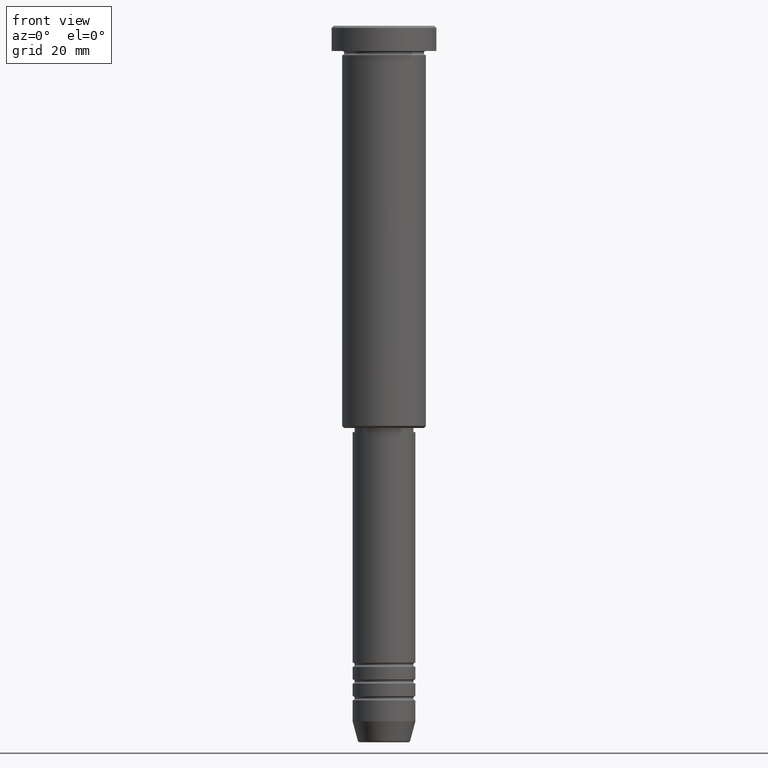
[diagram: clean part render]
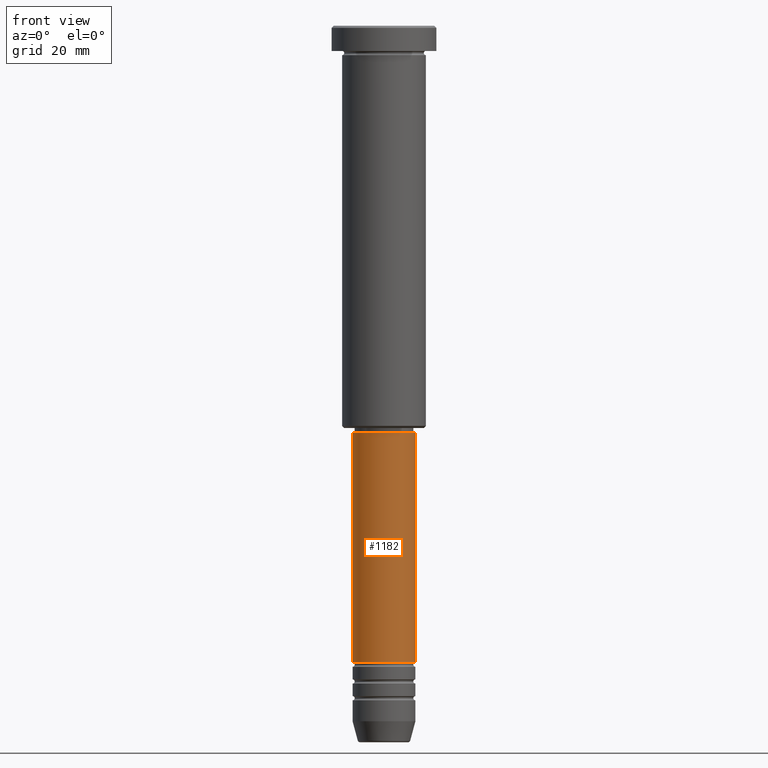
[diagram: same view with one face highlighted and labeled with its STEP entity id]
A machine part, front view. The second image highlights one B-rep face of the part: STEP entity #1182.
In plain terms, the highlighted cylindrical surface (edge-blend (fillet) strip) has radius 7.5 mm, axis along (-0, -0, 1).
Its self-contained STEP definition (entity closure, byte-faithful):
#51 = VERTEX_POINT ( 'NONE', #101 ) ;
#101 = CARTESIAN_POINT ( 'NONE',  ( -7.500000000000000000, 9.184850993605147944E-16, -96.99999999999997158 ) ) ;
#103 = CARTESIAN_POINT ( 'NONE',  ( -7.500000000000001776, 9.184850993605149917E-16, -151.9999999999998579 ) ) ;
#130 = CIRCLE ( 'NONE', #783, 7.500000000000000888 ) ;
#184 = AXIS2_PLACEMENT_3D ( 'NONE', #565, #1007, #1002 ) ;
#298 = DIRECTION ( 'NONE',  ( 1.000000000000000000, 0.000000000000000000, 0.000000000000000000 ) ) ;
#305 = EDGE_CURVE ( 'NONE', #938, #51, #918, .T. ) ;
#425 = ORIENTED_EDGE ( 'NONE', *, *, #776, .T. ) ;
#439 = VERTEX_POINT ( 'NONE', #844 ) ;
#454 = DIRECTION ( 'NONE',  ( -0.000000000000000000, -0.000000000000000000, 1.000000000000000000 ) ) ;
#465 = DIRECTION ( 'NONE',  ( -0.000000000000000000, -0.000000000000000000, 1.000000000000000000 ) ) ;
#479 = VECTOR ( 'NONE', #465, 1000.000000000000000 ) ;
#484 = EDGE_CURVE ( 'NONE', #549, #439, #959, .T. ) ;
#521 = EDGE_CURVE ( 'NONE', #51, #439, #625, .T. ) ;
#532 = AXIS2_PLACEMENT_3D ( 'NONE', #756, #1115, #298 ) ;
#542 = CARTESIAN_POINT ( 'NONE',  ( -7.500000000000000000, 9.184850993605147944E-16, 0.000000000000000000 ) ) ;
#549 = VERTEX_POINT ( 'NONE', #707 ) ;
#565 = CARTESIAN_POINT ( 'NONE',  ( 0.000000000000000000, 0.000000000000000000, 0.000000000000000000 ) ) ;
#571 = VECTOR ( 'NONE', #857, 1000.000000000000000 ) ;
#622 = ORIENTED_EDGE ( 'NONE', *, *, #521, .F. ) ;
#625 = CIRCLE ( 'NONE', #532, 7.500000000000000000 ) ;
#627 = CARTESIAN_POINT ( 'NONE',  ( 0.000000000000000000, 0.000000000000000000, -151.9999999999998579 ) ) ;
#641 = FACE_OUTER_BOUND ( 'NONE', #804, .T. ) ;
#679 = ORIENTED_EDGE ( 'NONE', *, *, #484, .T. ) ;
#707 = CARTESIAN_POINT ( 'NONE',  ( 7.500000000000000888, 0.000000000000000000, -151.9999999999998579 ) ) ;
#756 = CARTESIAN_POINT ( 'NONE',  ( 0.000000000000000000, 0.000000000000000000, -96.99999999999997158 ) ) ;
#774 = ORIENTED_EDGE ( 'NONE', *, *, #305, .F. ) ;
#775 = CARTESIAN_POINT ( 'NONE',  ( 7.500000000000000000, 0.000000000000000000, 0.000000000000000000 ) ) ;
#776 = EDGE_CURVE ( 'NONE', #938, #549, #130, .T. ) ;
#783 = AXIS2_PLACEMENT_3D ( 'NONE', #627, #454, #1170 ) ;
#804 = EDGE_LOOP ( 'NONE', ( #774, #425, #679, #622 ) ) ;
#844 = CARTESIAN_POINT ( 'NONE',  ( 7.500000000000000000, 0.000000000000000000, -96.99999999999997158 ) ) ;
#857 = DIRECTION ( 'NONE',  ( -0.000000000000000000, -0.000000000000000000, 1.000000000000000000 ) ) ;
#918 = LINE ( 'NONE', #542, #479 ) ;
#938 = VERTEX_POINT ( 'NONE', #103 ) ;
#942 = CYLINDRICAL_SURFACE ( 'NONE', #184, 7.500000000000000000 ) ;
#959 = LINE ( 'NONE', #775, #571 ) ;
#1002 = DIRECTION ( 'NONE',  ( 1.000000000000000000, 0.000000000000000000, 0.000000000000000000 ) ) ;
#1007 = DIRECTION ( 'NONE',  ( -0.000000000000000000, -0.000000000000000000, 1.000000000000000000 ) ) ;
#1115 = DIRECTION ( 'NONE',  ( -0.000000000000000000, -0.000000000000000000, 1.000000000000000000 ) ) ;
#1170 = DIRECTION ( 'NONE',  ( 1.000000000000000000, 0.000000000000000000, 0.000000000000000000 ) ) ;
#1182 = ADVANCED_FACE ( 'NONE', ( #641 ), #942, .T. ) ;